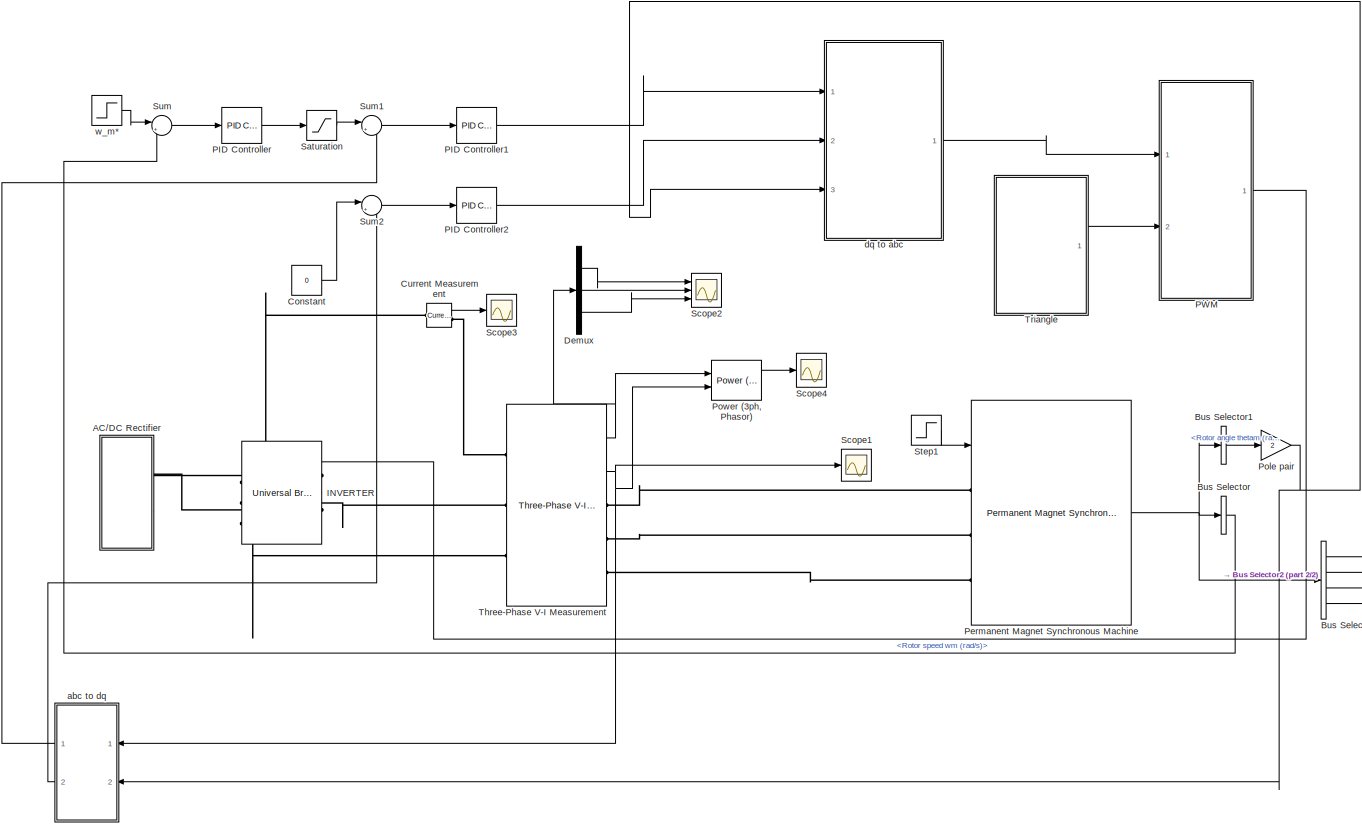
[diagram: root canvas - part 1/2, most of the canvas]
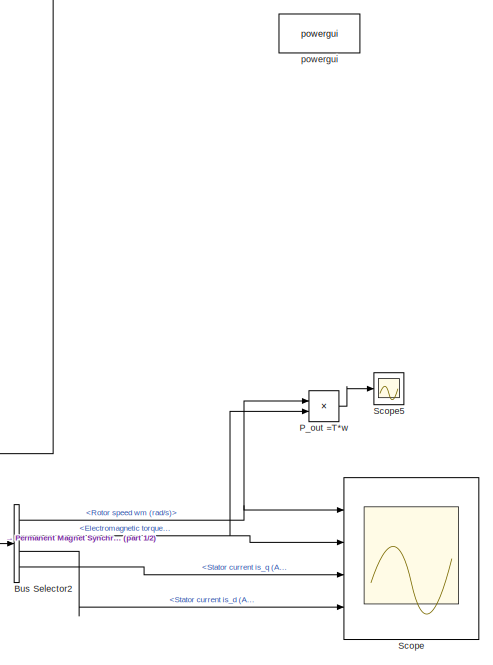
[diagram: root canvas - part 2/2, right side, full height]
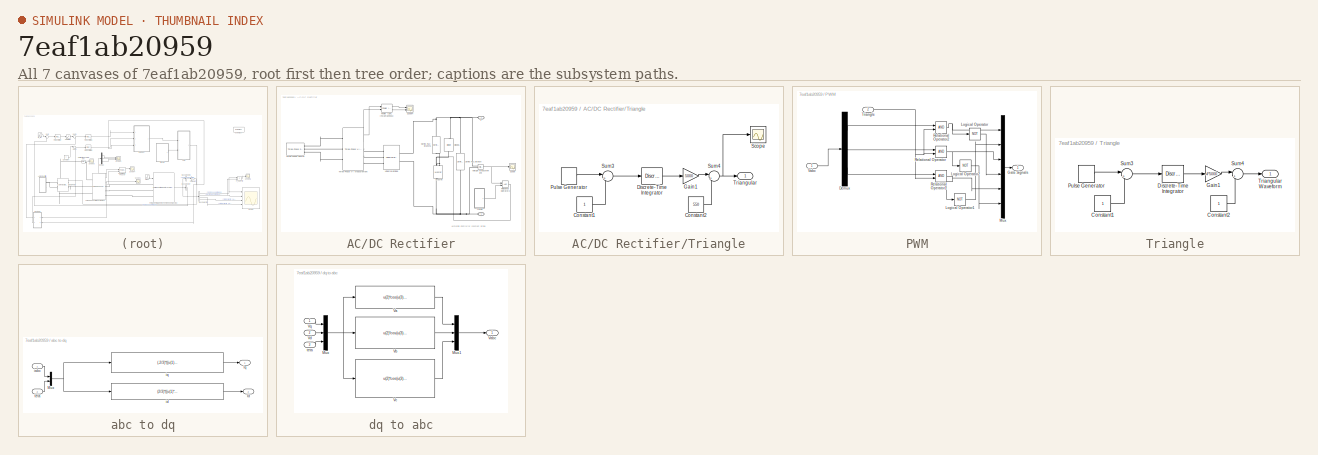
[diagram: thumbnail index - all 7 canvases of the model, root first then tree order]
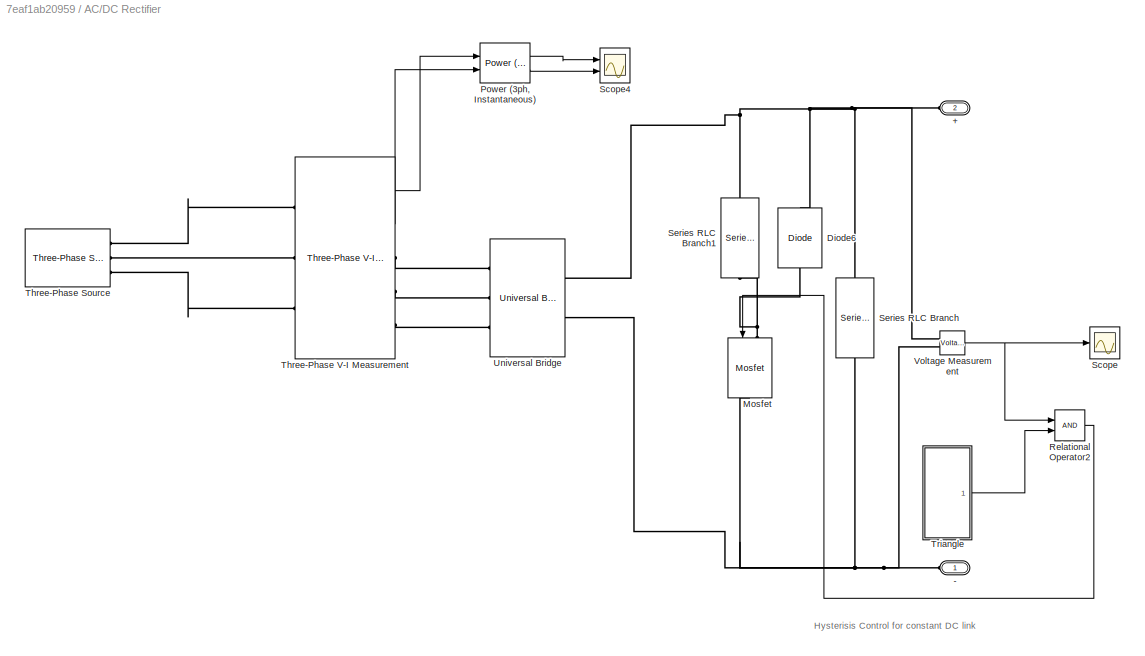
MODEL slx_7eaf1ab20959
KIND model
CONFIG AbsTol = auto
CONFIG EnableMultiTasking = off
CONFIG FixedStep = auto
CONFIG MaxStep = auto
CONFIG MinStep = auto
CONFIG RelTol = 1e-3
CONFIG SampleTimeConstraint = Unconstrained
CONFIG Solver = VariableStepDiscrete
CONFIG SolverName = VariableStepDiscrete
CONFIG StartTime = 0
CONFIG StopTime = 0.01
BLOCK [SubSystem] AC//DC Rectifier
  Ports = [0, 0, 0, 0, 0, 2]
  RequestExecContextInheritance = off
BLOCK [PMIOPort] AC//DC Rectifier/+
  Port = 2
  Side = Left
BLOCK [PMIOPort] AC//DC Rectifier/-
  Side = Left
BLOCK [Reference] AC//DC Rectifier/Diode6  REF=powerlib/Power
Electronics/Diode
  Ports = [0, 0, 0, 0, 0, 1, 1]
  SourceBlock = powerlib/Power\nElectronics/Diode
  SourceProductBaseCode = PS
  SourceProductName = Simscape Electrical
  SourceType = Diode
BLOCK [Reference] AC//DC Rectifier/Mosfet  REF=powerlib/Power
Electronics/Mosfet
  Ports = [1, 0, 0, 0, 0, 1, 1]
  SourceBlock = powerlib/Power\nElectronics/Mosfet
  SourceProductBaseCode = PS
  SourceProductName = Simscape Electrical
  SourceType = Mosfet
BLOCK [Reference] AC//DC Rectifier/Power (3ph, Instantaneous)  REF=powerlib_meascontrol/Measurements/Power
(3ph, Instantaneous)
  Ports = [2, 2]
  SourceBlock = powerlib_meascontrol/Measurements/Power\n(3ph, Instantaneous)
  SourceProductBaseCode = PS
  SourceProductName = Simscape Electrical
  SourceType = Power (3ph, Instantaneous)
BLOCK [RelationalOperator] AC//DC Rectifier/Relational Operator2
  InputSameDT = off
  OutDataTypeStr = boolean
  Ports = [2, 1]
  RndMeth = Simplest
BLOCK [Scope] AC//DC Rectifier/Scope
  Floating = off
  NumInputPorts = 1
  Ports = [1]
  ScopeSpecificationString = Simulink.scopes.TimeScopeBlockCfg('CurrentConfiguration', extmgr.ConfigurationSet(extmgr.Configuration('Core','General UI',true,'FigureColor',[1 1 1]),extmgr.Configuration('Core','Source UI',true),extmgr.Configuration('Sources','WiredSimulink',true,'DataLoggingVariableName','ScopeData3'),extmgr.Configuration('Visuals','Time Domain',true,'SerializedDisplays',{struct('MinYLimReal','537.76066','MaxYL...<+1626ch>
BLOCK [Scope] AC//DC Rectifier/Scope4
  Floating = off
  NumInputPorts = 2
  Ports = [2]
  ScopeSpecificationString = Simulink.scopes.TimeScopeBlockCfg('CurrentConfiguration', extmgr.ConfigurationSet(extmgr.Configuration('Core','General UI',true,'FigureColor',[1 1 1]),extmgr.Configuration('Core','Source UI',true),extmgr.Configuration('Sources','WiredSimulink',true,'DataLoggingVariableName','ScopeData7'),extmgr.Configuration('Visuals','Time Domain',true,'SerializedDisplays',{struct('MinYLimReal','-18305938.00342',...<+1835ch>
BLOCK [Reference] AC//DC Rectifier/Series RLC Branch  REF=powerlib/Elements/Series RLC Branch
  Ports = [0, 0, 0, 0, 0, 1, 1]
  SourceBlock = powerlib/Elements/Series RLC Branch
  SourceProductBaseCode = PS
  SourceProductName = Simscape Electrical
  SourceType = Series RLC Branch
BLOCK [Reference] AC//DC Rectifier/Series RLC Branch1  REF=powerlib/Elements/Series RLC Branch
  Ports = [0, 0, 0, 0, 0, 1, 1]
  SourceBlock = powerlib/Elements/Series RLC Branch
  SourceProductBaseCode = PS
  SourceProductName = Simscape Electrical
  SourceType = Series RLC Branch
BLOCK [Reference] AC//DC Rectifier/Three-Phase Source  REF=powerlib/Electrical
Sources/Three-Phase Source
  Ports = [0, 0, 0, 0, 0, 0, 3]
  SourceBlock = powerlib/Electrical\nSources/Three-Phase Source
  SourceProductBaseCode = PS
  SourceProductName = Simscape Electrical
  SourceType = Three-Phase Source
BLOCK [Reference] AC//DC Rectifier/Three-Phase V-I Measurement  REF=powerlib/Measurements/Three-Phase
V-I Measurement
  Ports = [0, 2, 0, 0, 0, 3, 3]
  SourceBlock = powerlib/Measurements/Three-Phase\nV-I Measurement
  SourceProductBaseCode = PS
  SourceProductName = Simscape Electrical
  SourceType = Three-Phase VI Measurement
BLOCK [SubSystem] AC//DC Rectifier/Triangle
  Ports = [0, 1]
  RequestExecContextInheritance = off
BLOCK [Constant] AC//DC Rectifier/Triangle/Constant1
BLOCK [Constant] AC//DC Rectifier/Triangle/Constant2
  Value = 550
BLOCK [DiscreteIntegrator] AC//DC Rectifier/Triangle/Discrete-Time Integrator
  ICPrevOutput = DiscIntNeverNeededParam
  ICPrevScaledInput = DiscIntNeverNeededParam
  InitialConditionSetting = Auto
  Ports = [1, 1]
  SampleTime = -1
BLOCK [Gain] AC//DC Rectifier/Triangle/Gain1
  Gain = 5000
  OutDataTypeStr = Inherit: Inherit via internal rule
  ParamDataTypeStr = Inherit: Inherit via internal rule
  SaturateOnIntegerOverflow = off
BLOCK [DiscretePulseGenerator] AC//DC Rectifier/Triangle/Pulse Generator
  Amplitude = 2
  Period = 1/5000
  Ports = [0, 1]
  PulseType = Time based
  PulseWidth = 50
BLOCK [Scope] AC//DC Rectifier/Triangle/Scope
  Floating = off
  NumInputPorts = 1
  Ports = [1]
  ScopeSpecificationString = Simulink.scopes.TimeScopeBlockCfg('CurrentConfiguration', extmgr.ConfigurationSet(extmgr.Configuration('Core','General UI',true),extmgr.Configuration('Core','Source UI',true),extmgr.Configuration('Sources','WiredSimulink',true,'DataLoggingVariableName','ScopeData4'),extmgr.Configuration('Visuals','Time Domain',true,'SerializedDisplays',{struct('MinYLimReal','549.9375','MaxYLimReal','550.5625','YLa...<+1441ch>
BLOCK [Sum] AC//DC Rectifier/Triangle/Sum3
  IconShape = round
  InputSameDT = off
  Inputs = |+-
  OutDataTypeStr = Inherit: Inherit via internal rule
  Ports = [2, 1]
  SaturateOnIntegerOverflow = off
BLOCK [Sum] AC//DC Rectifier/Triangle/Sum4
  IconShape = round
  InputSameDT = off
  Inputs = |++
  OutDataTypeStr = Inherit: Inherit via internal rule
  Ports = [2, 1]
  SaturateOnIntegerOverflow = off
BLOCK [Outport] AC//DC Rectifier/Triangle/Triangular
  IconDisplay = Port number
BLOCK [Reference] AC//DC Rectifier/Universal Bridge  REF=powerlib/Power
Electronics/Universal Bridge
  Ports = [0, 0, 0, 0, 0, 3, 2]
  SourceBlock = powerlib/Power\nElectronics/Universal Bridge
  SourceProductBaseCode = PS
  SourceProductName = Simscape Electrical
  SourceType = Universal Bridge
BLOCK [Reference] AC//DC Rectifier/Voltage Measurement  REF=powerlib/Measurements/Voltage Measurement
  Ports = [0, 1, 0, 0, 0, 2]
  SourceBlock = powerlib/Measurements/Voltage Measurement
  SourceProductBaseCode = PS
  SourceProductName = Simscape Electrical
  SourceType = Voltage Measurement
  UserDataPersistent = on
BLOCK [BusSelector] Bus Selector
  OutputAsBus = off
  OutputSignals = Rotor speed wm (rad/s)
  Ports = [1, 1]
BLOCK [BusSelector] Bus Selector1
  OutputAsBus = off
  OutputSignals = Rotor angle thetam (rad)
  Ports = [1, 1]
BLOCK [BusSelector] Bus Selector2
  OutputAsBus = off
  OutputSignals = Rotor speed wm (rad/s),Electromagnetic torque Te (N*m),Stator current is_d (A),Stator current is_q (A)
  Ports = [1, 4]
BLOCK [Constant] Constant
  Value = 0
BLOCK [Reference] Current Measurement  REF=powerlib/Measurements/Current Measurement
  Ports = [0, 1, 0, 0, 0, 1, 1]
  SourceBlock = powerlib/Measurements/Current Measurement
  SourceProductBaseCode = PS
  SourceProductName = Simscape Electrical
  SourceType = Current Measurement
  UserDataPersistent = on
BLOCK [Demux] Demux
  DisplayOption = bar
  Outputs = 3
  Ports = [1, 3]
BLOCK [Reference] INVERTER  REF=powerlib/Power
Electronics/Universal Bridge
  Ports = [1, 0, 0, 0, 0, 3, 2]
  SourceBlock = powerlib/Power\nElectronics/Universal Bridge
  SourceProductBaseCode = PS
  SourceProductName = Simscape Electrical
  SourceType = Universal Bridge
BLOCK [Reference] PID Controller  REF=simulink/Continuous/PID Controller
  Ports = [1, 1]
  SourceBlock = simulink/Continuous/PID Controller
  SourceProductBaseCode = SL
  SourceProductName = Simulink
  SourceType = PID 1dof
BLOCK [Reference] PID Controller1  REF=simulink/Continuous/PID Controller
  Ports = [1, 1]
  SourceBlock = simulink/Continuous/PID Controller
  SourceProductBaseCode = SL
  SourceProductName = Simulink
  SourceType = PID 1dof
BLOCK [Reference] PID Controller2  REF=simulink/Continuous/PID Controller
  Ports = [1, 1]
  SourceBlock = simulink/Continuous/PID Controller
  SourceProductBaseCode = SL
  SourceProductName = Simulink
  SourceType = PID 1dof
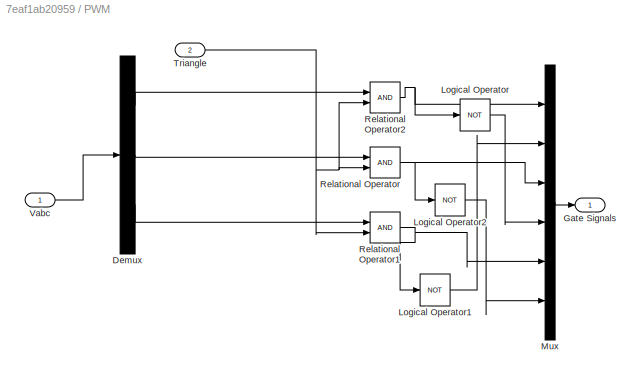
BLOCK [SubSystem] PWM
  Ports = [2, 1]
  RequestExecContextInheritance = off
BLOCK [Demux] PWM/Demux
  DisplayOption = bar
  Outputs = 3
  Ports = [1, 3]
BLOCK [Outport] PWM/Gate Signals
  IconDisplay = Port number
BLOCK [Logic] PWM/Logical Operator
  AllPortsSameDT = off
  Operator = NOT
  OutDataTypeStr = boolean
  Ports = [1, 1]
BLOCK [Logic] PWM/Logical Operator1
  AllPortsSameDT = off
  Operator = NOT
  OutDataTypeStr = boolean
  Ports = [1, 1]
BLOCK [Logic] PWM/Logical Operator2
  AllPortsSameDT = off
  Operator = NOT
  OutDataTypeStr = boolean
  Ports = [1, 1]
BLOCK [Mux] PWM/Mux
  DisplayOption = bar
  Inputs = 6
  Ports = [6, 1]
BLOCK [RelationalOperator] PWM/Relational Operator
  InputSameDT = off
  OutDataTypeStr = boolean
  Ports = [2, 1]
  RndMeth = Simplest
BLOCK [RelationalOperator] PWM/Relational Operator1
  InputSameDT = off
  OutDataTypeStr = boolean
  Ports = [2, 1]
  RndMeth = Simplest
BLOCK [RelationalOperator] PWM/Relational Operator2
  InputSameDT = off
  OutDataTypeStr = boolean
  Ports = [2, 1]
  RndMeth = Simplest
BLOCK [Inport] PWM/Triangle 
  IconDisplay = Port number
  Port = 2
BLOCK [Inport] PWM/Vabc 
  IconDisplay = Port number
BLOCK [Product] P_out =T*w
  InputSameDT = off
  OutDataTypeStr = Inherit: Inherit via internal rule
  Ports = [2, 1]
  RndMeth = Floor
  SaturateOnIntegerOverflow = off
BLOCK [Reference] Permanent Magnet Synchronous Machine  REF=powerlib/Machines/Permanent Magnet
Synchronous Machine
  Ports = [1, 1, 0, 0, 0, 3]
  SourceBlock = powerlib/Machines/Permanent Magnet\nSynchronous Machine
  SourceProductBaseCode = PS
  SourceProductName = Simscape Electrical
  SourceType = Permanent Magnet Synchronous Machine
BLOCK [Gain] Pole pair 
  Gain = 2
  OutDataTypeStr = Inherit: Inherit via internal rule
  ParamDataTypeStr = Inherit: Inherit via internal rule
  SaturateOnIntegerOverflow = off
BLOCK [Reference] Power (3ph, Phasor)  REF=powerlib_meascontrol/Measurements/Power
(3ph, Phasor)
  Ports = [2, 2]
  SourceBlock = powerlib_meascontrol/Measurements/Power\n(3ph, Phasor)
  SourceProductBaseCode = PS
  SourceProductName = Simscape Electrical
  SourceType = Power (3ph, Phasor)
BLOCK [Saturate] Saturation
  InputPortMap = u0
  LowerLimit = -229
  Ports = [1, 1]
  UpperLimit = 229
BLOCK [Scope] Scope
  Floating = off
  NumInputPorts = 4
  Ports = [4]
  ScopeSpecificationString = Simulink.scopes.TimeScopeBlockCfg('CurrentConfiguration', extmgr.ConfigurationSet(extmgr.Configuration('Core','General UI',true,'FigureColor',[1 1 1]),extmgr.Configuration('Core','Source UI',true),extmgr.Configuration('Sources','WiredSimulink',true),extmgr.Configuration('Visuals','Time Domain',true,'SerializedDisplays',{struct('MinYLimReal','141.13561','MaxYLimReal','141.39604','YLabelReal','','Mi...<+4148ch>
BLOCK [Scope] Scope1
  Floating = off
  NumInputPorts = 1
  Ports = [1]
  ScopeSpecificationString = Simulink.scopes.TimeScopeBlockCfg('CurrentConfiguration', extmgr.ConfigurationSet(extmgr.Configuration('Core','General UI',true,'FigureColor',[1 1 1]),extmgr.Configuration('Core','Source UI',true),extmgr.Configuration('Sources','WiredSimulink',true,'DataLoggingVariableName','ScopeData1'),extmgr.Configuration('Visuals','Time Domain',true,'SerializedDisplays',{struct('MinYLimReal','-266.82721','MaxY...<+1691ch>
BLOCK [Scope] Scope2
  Floating = off
  NumInputPorts = 3
  Ports = [3]
  ScopeSpecificationString = Simulink.scopes.TimeScopeBlockCfg('CurrentConfiguration', extmgr.ConfigurationSet(extmgr.Configuration('Core','General UI',true,'FigureColor',[1 1 1]),extmgr.Configuration('Core','Source UI',true),extmgr.Configuration('Sources','WiredSimulink',true,'DataLoggingVariableName','ScopeData2'),extmgr.Configuration('Visuals','Time Domain',true,'SerializedDisplays',{struct('MinYLimReal','-707.47365','MaxY...<+3099ch>
BLOCK [Scope] Scope3
  Floating = off
  NumInputPorts = 1
  Ports = [1]
  ScopeSpecificationString = Simulink.scopes.TimeScopeBlockCfg('CurrentConfiguration', extmgr.ConfigurationSet(extmgr.Configuration('Core','General UI',true,'FigureColor',[1 1 1]),extmgr.Configuration('Core','Source UI',true),extmgr.Configuration('Sources','WiredSimulink',true,'DataLoggingVariableName','ScopeData5'),extmgr.Configuration('Visuals','Time Domain',true,'SerializedDisplays',{struct('MinYLimReal','-310.78486','MaxY...<+1632ch>
BLOCK [Scope] Scope4
  Floating = off
  NumInputPorts = 1
  Ports = [1]
  ScopeSpecificationString = Simulink.scopes.TimeScopeBlockCfg('CurrentConfiguration', extmgr.ConfigurationSet(extmgr.Configuration('Core','General UI',true,'FigureColor',[1 1 1]),extmgr.Configuration('Core','Source UI',true),extmgr.Configuration('Sources','WiredSimulink',true,'DataLoggingVariableName','ScopeData6'),extmgr.Configuration('Visuals','Time Domain',true,'SerializedDisplays',{struct('MinYLimReal','-141747.00223','M...<+2231ch>
BLOCK [Scope] Scope5
  Floating = off
  NumInputPorts = 1
  Ports = [1]
  ScopeSpecificationString = Simulink.scopes.TimeScopeBlockCfg('CurrentConfiguration', extmgr.ConfigurationSet(extmgr.Configuration('Core','General UI',true,'FigureColor',[1 1 1]),extmgr.Configuration('Core','Source UI',true),extmgr.Configuration('Sources','WiredSimulink',true,'DataLoggingVariableName','ScopeData8'),extmgr.Configuration('Visuals','Time Domain',true,'SerializedDisplays',{struct('MinYLimReal','39638.946','MaxYL...<+1653ch>
BLOCK [Step] Step1
  After = 0
  SampleTime = 0
  Time = 2
BLOCK [Sum] Sum
  IconShape = round
  InputSameDT = off
  Inputs = |+-
  OutDataTypeStr = Inherit: Inherit via internal rule
  Ports = [2, 1]
  SaturateOnIntegerOverflow = off
BLOCK [Sum] Sum1
  IconShape = round
  InputSameDT = off
  Inputs = |+-
  OutDataTypeStr = Inherit: Inherit via internal rule
  Ports = [2, 1]
  SaturateOnIntegerOverflow = off
BLOCK [Sum] Sum2
  IconShape = round
  InputSameDT = off
  Inputs = |+-
  OutDataTypeStr = Inherit: Inherit via internal rule
  Ports = [2, 1]
  SaturateOnIntegerOverflow = off
BLOCK [Reference] Three-Phase V-I Measurement  REF=powerlib/Measurements/Three-Phase
V-I Measurement
  Ports = [0, 2, 0, 0, 0, 3, 3]
  SourceBlock = powerlib/Measurements/Three-Phase\nV-I Measurement
  SourceProductBaseCode = PS
  SourceProductName = Simscape Electrical
  SourceType = Three-Phase VI Measurement
BLOCK [SubSystem] Triangle
  Ports = [0, 1]
  RequestExecContextInheritance = off
BLOCK [Constant] Triangle/Constant1
BLOCK [Constant] Triangle/Constant2
BLOCK [DiscreteIntegrator] Triangle/Discrete-Time Integrator
  ICPrevOutput = DiscIntNeverNeededParam
  ICPrevScaledInput = DiscIntNeverNeededParam
  InitialConditionSetting = Auto
  Ports = [1, 1]
  SampleTime = -1
BLOCK [Gain] Triangle/Gain1
  Gain = 4*5000
  OutDataTypeStr = Inherit: Inherit via internal rule
  ParamDataTypeStr = Inherit: Inherit via internal rule
  SaturateOnIntegerOverflow = off
BLOCK [DiscretePulseGenerator] Triangle/Pulse Generator
  Amplitude = 2
  Period = 1/5000
  Ports = [0, 1]
  PulseType = Time based
  PulseWidth = 50
BLOCK [Sum] Triangle/Sum3
  IconShape = round
  InputSameDT = off
  Inputs = |+-
  OutDataTypeStr = Inherit: Inherit via internal rule
  Ports = [2, 1]
  SaturateOnIntegerOverflow = off
BLOCK [Sum] Triangle/Sum4
  IconShape = round
  InputSameDT = off
  Inputs = |+-
  OutDataTypeStr = Inherit: Inherit via internal rule
  Ports = [2, 1]
  SaturateOnIntegerOverflow = off
BLOCK [Outport] Triangle/Triangular Waveform
  IconDisplay = Port number
BLOCK [SubSystem] abc to dq
  Ports = [2, 2]
  RequestExecContextInheritance = off
BLOCK [Outport] abc to dq/Id
  IconDisplay = Port number
  Port = 2
BLOCK [Outport] abc to dq/Iq
  IconDisplay = Port number
BLOCK [Mux] abc to dq/Mux
  DisplayOption = bar
  Inputs = 2
  Ports = [2, 1]
BLOCK [Inport] abc to dq/iabc
  IconDisplay = Port number
BLOCK [Fcn] abc to dq/id
  Expr = (2/3)*((u(1)*cos(u(4))+u(2)*cos(u(4)-2*pi/3)+u(3)*cos(u(4)+2*pi/3)))
BLOCK [Fcn] abc to dq/iq
  Expr = (-2/3)*((u(1)*sin(u(4))+u(2)*sin(u(4)-2*pi/3)+u(3)*sin(u(4)+2*pi/3)))
BLOCK [Inport] abc to dq/teta
  IconDisplay = Port number
  Port = 2
BLOCK [SubSystem] dq to abc
  Ports = [3, 1]
  RequestExecContextInheritance = off
BLOCK [Mux] dq to abc/Mux
  DisplayOption = bar
  Inputs = 3
  Ports = [3, 1]
BLOCK [Mux] dq to abc/Mux1
  DisplayOption = bar
  Inputs = 3
  Ports = [3, 1]
BLOCK [Fcn] dq to abc/Va
  Expr = u(2)*cos(u(3))-u(1)*sin(u(3))
BLOCK [Outport] dq to abc/Vabc
  IconDisplay = Port number
BLOCK [Fcn] dq to abc/Vb
  Expr = u(2)*cos(u(3)-2*pi/3)-u(1)*sin(u(3)-2*pi/3)
BLOCK [Fcn] dq to abc/Vc 
  Expr = u(2)*cos(u(3)+2*pi/3)-u(1)*sin(u(3)+2*pi/3)
BLOCK [Inport] dq to abc/Vd
  IconDisplay = Port number
  Port = 2
BLOCK [Inport] dq to abc/Vq
  IconDisplay = Port number
BLOCK [Inport] dq to abc/teta
  IconDisplay = Port number
  Port = 3
BLOCK [Reference] powergui  REF=powerlib/powergui
  Ports = []
  Priority = 1
  SourceBlock = powerlib/powergui
  SourceProductBaseCode = PS
  SourceProductName = Simscape Power Systems
  SourceType = PSB option menu block
BLOCK [Step] w_m* 
  After = -266.6
  Before = 266.6
  SampleTime = 0
  Time = 0.5
ANNOTATION AC//DC Rectifier: Hysterisis Control for constant DC link
LINE AC//DC Rectifier/Power (3ph, Instantaneous):1 -> AC//DC Rectifier/Scope4:1
LINE AC//DC Rectifier/Power (3ph, Instantaneous):2 -> AC//DC Rectifier/Scope4:2
LINE AC//DC Rectifier/Relational Operator2:1 -> AC//DC Rectifier/Mosfet:1
LINE AC//DC Rectifier/Three-Phase V-I Measurement:1 -> AC//DC Rectifier/Power (3ph, Instantaneous):1
LINE AC//DC Rectifier/Three-Phase V-I Measurement:2 -> AC//DC Rectifier/Power (3ph, Instantaneous):2
LINE AC//DC Rectifier/Triangle/Constant1:1 -> AC//DC Rectifier/Triangle/Sum3:2
LINE AC//DC Rectifier/Triangle/Constant2:1 -> AC//DC Rectifier/Triangle/Sum4:2
LINE AC//DC Rectifier/Triangle/Discrete-Time Integrator:1 -> AC//DC Rectifier/Triangle/Gain1:1
LINE AC//DC Rectifier/Triangle/Gain1:1 -> AC//DC Rectifier/Triangle/Sum4:1
LINE AC//DC Rectifier/Triangle/Pulse Generator:1 -> AC//DC Rectifier/Triangle/Sum3:1
LINE AC//DC Rectifier/Triangle/Sum3:1 -> AC//DC Rectifier/Triangle/Discrete-Time Integrator:1
NET AC//DC Rectifier/Triangle/Sum4:1 -> AC//DC Rectifier/Triangle/Scope:1, AC//DC Rectifier/Triangle/Triangular:1
LINE AC//DC Rectifier/Triangle:1 -> AC//DC Rectifier/Relational Operator2:2
NET AC//DC Rectifier/Voltage Measurement:1 -> AC//DC Rectifier/Relational Operator2:1, AC//DC Rectifier/Scope:1
LINE Bus Selector1:1 -> Pole pair :1
NET Bus Selector2:1 -> P_out =T*w:1, Scope:1
NET Bus Selector2:2 -> P_out =T*w:2, Scope:2
LINE Bus Selector2:3 -> Scope:4
LINE Bus Selector2:4 -> Scope:3
LINE Bus Selector:1 -> Sum:2
LINE Constant:1 -> Sum2:1
LINE Current Measurement:1 -> Scope3:1
LINE Demux:1 -> Scope2:1
LINE Demux:2 -> Scope2:2
LINE Demux:3 -> Scope2:3
LINE PID Controller1:1 -> dq to abc:1
LINE PID Controller2:1 -> dq to abc:2
LINE PID Controller:1 -> Saturation:1
LINE PWM/Demux:1 -> PWM/Relational Operator2:1
LINE PWM/Demux:2 -> PWM/Relational Operator:1
LINE PWM/Demux:3 -> PWM/Relational Operator1:1
LINE PWM/Logical Operator1:1 -> PWM/Mux:2
LINE PWM/Logical Operator2:1 -> PWM/Mux:6
LINE PWM/Logical Operator:1 -> PWM/Mux:4
LINE PWM/Mux:1 -> PWM/Gate Signals:1
NET PWM/Relational Operator1:1 -> PWM/Logical Operator1:1, PWM/Mux:5
NET PWM/Relational Operator2:1 -> PWM/Logical Operator:1, PWM/Mux:1
NET PWM/Relational Operator:1 -> PWM/Logical Operator2:1, PWM/Mux:3
NET PWM/Triangle :1 -> PWM/Relational Operator1:2, PWM/Relational Operator2:2, PWM/Relational Operator:2
LINE PWM/Vabc :1 -> PWM/Demux:1
LINE PWM:1 -> INVERTER:1
LINE P_out =T*w:1 -> Scope5:1
NET Permanent Magnet Synchronous Machine:1 -> Bus Selector1:1, Bus Selector2:1, Bus Selector:1
NET Pole pair :1 -> abc to dq:2, dq to abc:3
LINE Power (3ph, Phasor):1 -> Scope4:1
LINE Saturation:1 -> Sum1:1
LINE Step1:1 -> Permanent Magnet Synchronous Machine:1
LINE Sum1:1 -> PID Controller1:1
LINE Sum2:1 -> PID Controller2:1
LINE Sum:1 -> PID Controller:1
NET Three-Phase V-I Measurement:1 -> Demux:1, Power (3ph, Phasor):1
NET Three-Phase V-I Measurement:2 -> Power (3ph, Phasor):2, Scope1:1, abc to dq:1
LINE Triangle/Constant1:1 -> Triangle/Sum3:2
LINE Triangle/Constant2:1 -> Triangle/Sum4:2
LINE Triangle/Discrete-Time Integrator:1 -> Triangle/Gain1:1
LINE Triangle/Gain1:1 -> Triangle/Sum4:1
LINE Triangle/Pulse Generator:1 -> Triangle/Sum3:1
LINE Triangle/Sum3:1 -> Triangle/Discrete-Time Integrator:1
LINE Triangle/Sum4:1 -> Triangle/Triangular Waveform:1
LINE Triangle:1 -> PWM:2
NET abc to dq/Mux:1 -> abc to dq/id:1, abc to dq/iq:1
LINE abc to dq/iabc:1 -> abc to dq/Mux:1
LINE abc to dq/id:1 -> abc to dq/Id:1
LINE abc to dq/iq:1 -> abc to dq/Iq:1
LINE abc to dq/teta:1 -> abc to dq/Mux:2
LINE abc to dq:1 -> Sum1:2
LINE abc to dq:2 -> Sum2:2
LINE dq to abc/Mux1:1 -> dq to abc/Vabc:1
NET dq to abc/Mux:1 -> dq to abc/Va:1, dq to abc/Vb:1, dq to abc/Vc :1
LINE dq to abc/Va:1 -> dq to abc/Mux1:1
LINE dq to abc/Vb:1 -> dq to abc/Mux1:2
LINE dq to abc/Vc :1 -> dq to abc/Mux1:3
LINE dq to abc/Vd:1 -> dq to abc/Mux:2
LINE dq to abc/Vq:1 -> dq to abc/Mux:1
LINE dq to abc/teta:1 -> dq to abc/Mux:3
LINE dq to abc:1 -> PWM:1
LINE w_m* :1 -> Sum:1
PNET net1: AC//DC Rectifier/+:RConn1 -- AC//DC Rectifier/Diode6:RConn1 -- AC//DC Rectifier/Series RLC Branch1:LConn1 -- AC//DC Rectifier/Series RLC Branch:LConn1 -- AC//DC Rectifier/Universal Bridge:RConn1 -- AC//DC Rectifier/Voltage Measurement:LConn1
PNET net2: AC//DC Rectifier/-:RConn1 -- AC//DC Rectifier/Mosfet:RConn1 -- AC//DC Rectifier/Series RLC Branch:RConn1 -- AC//DC Rectifier/Universal Bridge:RConn2 -- AC//DC Rectifier/Voltage Measurement:LConn2
PNET net3: AC//DC Rectifier/Diode6:LConn1 -- AC//DC Rectifier/Mosfet:LConn1 -- AC//DC Rectifier/Series RLC Branch1:RConn1
PLINE AC//DC Rectifier/Three-Phase Source:RConn1 -- AC//DC Rectifier/Three-Phase V-I Measurement:LConn1
PLINE AC//DC Rectifier/Three-Phase Source:RConn2 -- AC//DC Rectifier/Three-Phase V-I Measurement:LConn2
PLINE AC//DC Rectifier/Three-Phase Source:RConn3 -- AC//DC Rectifier/Three-Phase V-I Measurement:LConn3
PLINE AC//DC Rectifier/Three-Phase V-I Measurement:RConn1 -- AC//DC Rectifier/Universal Bridge:LConn1
PLINE AC//DC Rectifier/Three-Phase V-I Measurement:RConn2 -- AC//DC Rectifier/Universal Bridge:LConn2
PLINE AC//DC Rectifier/Three-Phase V-I Measurement:RConn3 -- AC//DC Rectifier/Universal Bridge:LConn3
PLINE AC//DC Rectifier:LConn1 -- INVERTER:RConn2
PLINE AC//DC Rectifier:LConn2 -- INVERTER:RConn1
PLINE Current Measurement:LConn1 -- INVERTER:LConn1
PLINE Current Measurement:RConn1 -- Three-Phase V-I Measurement:LConn1
PLINE INVERTER:LConn2 -- Three-Phase V-I Measurement:LConn2
PLINE INVERTER:LConn3 -- Three-Phase V-I Measurement:LConn3
PLINE Permanent Magnet Synchronous Machine:LConn1 -- Three-Phase V-I Measurement:RConn1
PLINE Permanent Magnet Synchronous Machine:LConn2 -- Three-Phase V-I Measurement:RConn2
PLINE Permanent Magnet Synchronous Machine:LConn3 -- Three-Phase V-I Measurement:RConn3
note: NET lines group one-source signal fan-out (src -> all destinations, sorted); 1:1 wires keep LINE; PNET lines group multi-terminal physical nets as a canonical sorted terminal list (undirected conserving connections); 2-terminal nets keep the pairwise PLINE form
